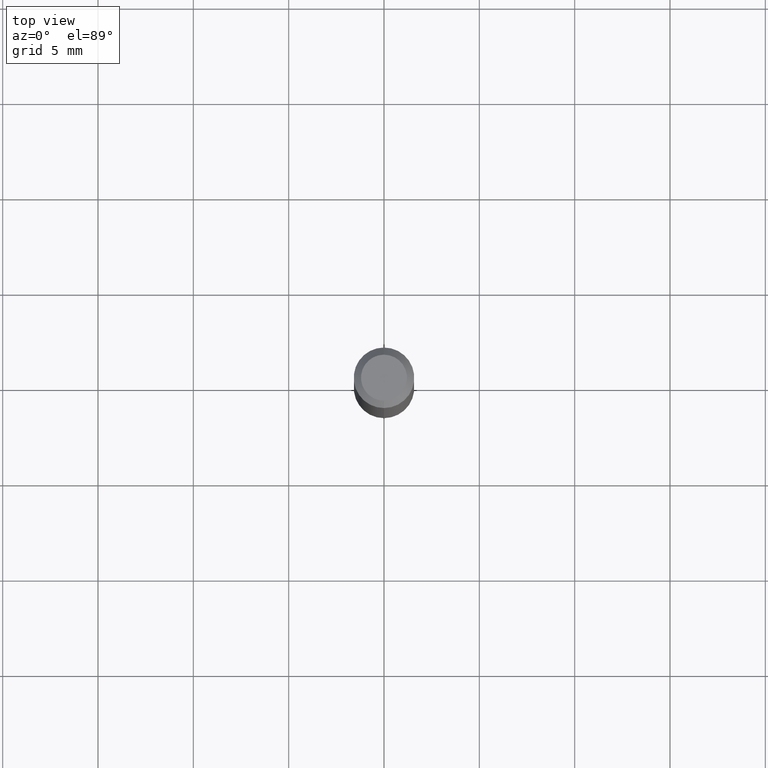
[diagram: clean part render]
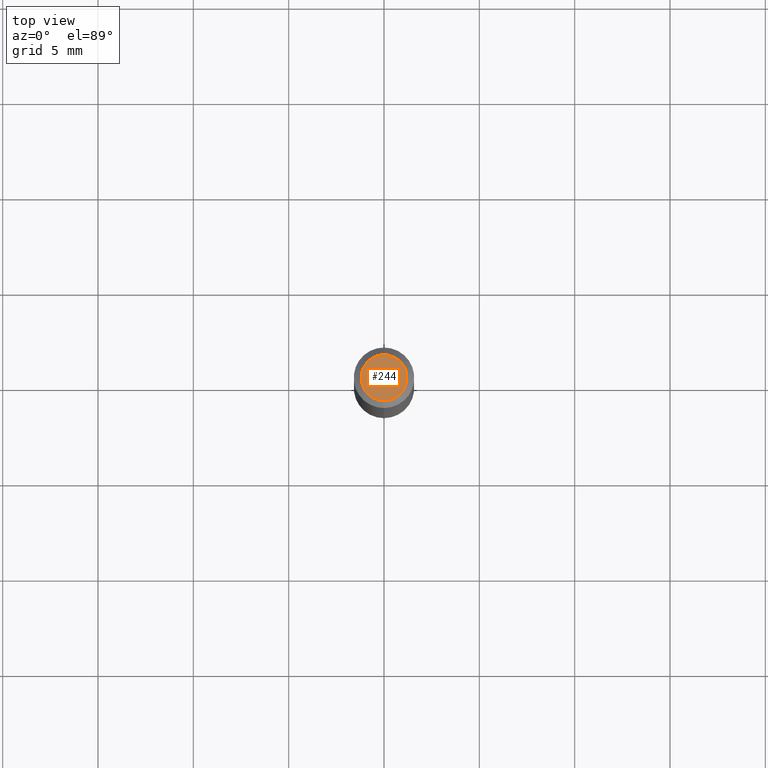
[diagram: same view with one face highlighted and labeled with its STEP entity id]
A machine part, top view. The second image highlights one B-rep face of the part: STEP entity #244.
In plain terms, the highlighted planar face has unit normal (0, -0, -1).
Its self-contained STEP definition (entity closure, byte-faithful):
#22 = AXIS2_PLACEMENT_3D ( 'NONE', #178, #349, #32 ) ;
#32 = DIRECTION ( 'NONE',  ( -6.982962677686266711E-15, -1.000000000000000000, 3.491742864902558415E-15 ) ) ;
#38 = AXIS2_PLACEMENT_3D ( 'NONE', #75, #400, #39 ) ;
#39 = DIRECTION ( 'NONE',  ( -6.982962677686266711E-15, -1.000000000000000000, 3.491742864902558415E-15 ) ) ;
#60 = CIRCLE ( 'NONE', #22, 0.04749999999999999362 ) ;
#75 = CARTESIAN_POINT ( 'NONE',  ( 2.163564054158609537E-46, -3.089458158231546394E-32, -8.847897104009008911E-18 ) ) ;
#96 = EDGE_LOOP ( 'NONE', ( #285, #254 ) ) ;
#124 = PLANE ( 'NONE',  #405 ) ;
#178 = CARTESIAN_POINT ( 'NONE',  ( 2.163564054158609537E-46, -3.089458158231546394E-32, -8.847897104009008911E-18 ) ) ;
#226 = DIRECTION ( 'NONE',  ( 6.982962677686265922E-15, 1.000000000000000000, -3.491742864902558020E-15 ) ) ;
#232 = FACE_OUTER_BOUND ( 'NONE', #96, .T. ) ;
#235 = CARTESIAN_POINT ( 'NONE',  ( 3.316907271900976096E-16, 0.04749999999999999362, -1.702817346348759876E-16 ) ) ;
#244 = ADVANCED_FACE ( 'NONE', ( #232 ), #124, .F. ) ;
#254 = ORIENTED_EDGE ( 'NONE', *, *, #385, .T. ) ;
#259 = CIRCLE ( 'NONE', #38, 0.04749999999999999362 ) ;
#285 = ORIENTED_EDGE ( 'NONE', *, *, #334, .T. ) ;
#293 = VERTEX_POINT ( 'NONE', #345 ) ;
#334 = EDGE_CURVE ( 'NONE', #293, #372, #60, .T. ) ;
#345 = CARTESIAN_POINT ( 'NONE',  ( 3.840629472727447874E-16, 0.04749999999999999362, -1.747056831868805136E-16 ) ) ;
#349 = DIRECTION ( 'NONE',  ( -2.445286183513924545E-29, 3.491742864902558020E-15, 1.000000000000000000 ) ) ;
#372 = VERTEX_POINT ( 'NONE', #407 ) ;
#385 = EDGE_CURVE ( 'NONE', #372, #293, #259, .T. ) ;
#400 = DIRECTION ( 'NONE',  ( -2.445286183513924545E-29, 3.491742864902558020E-15, 1.000000000000000000 ) ) ;
#402 = DIRECTION ( 'NONE',  ( 2.445286183513924265E-29, -3.491742864902558020E-15, -1.000000000000000000 ) ) ;
#405 = AXIS2_PLACEMENT_3D ( 'NONE', #235, #402, #226 ) ;
#407 = CARTESIAN_POINT ( 'NONE',  ( -3.773273898774340269E-16, -0.04749999999999999362, 1.570098889788624835E-16 ) ) ;